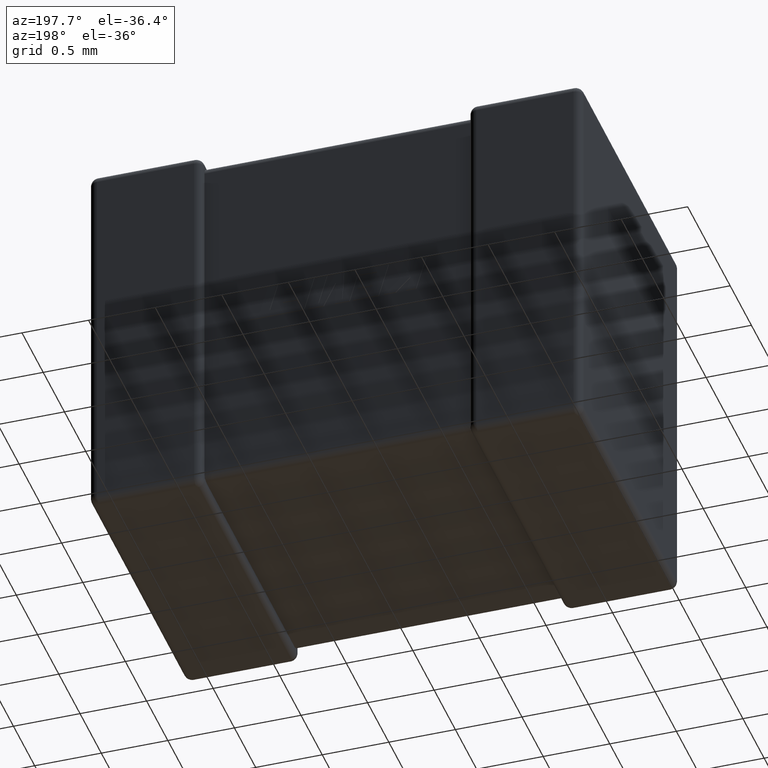
[diagram: clean part render]
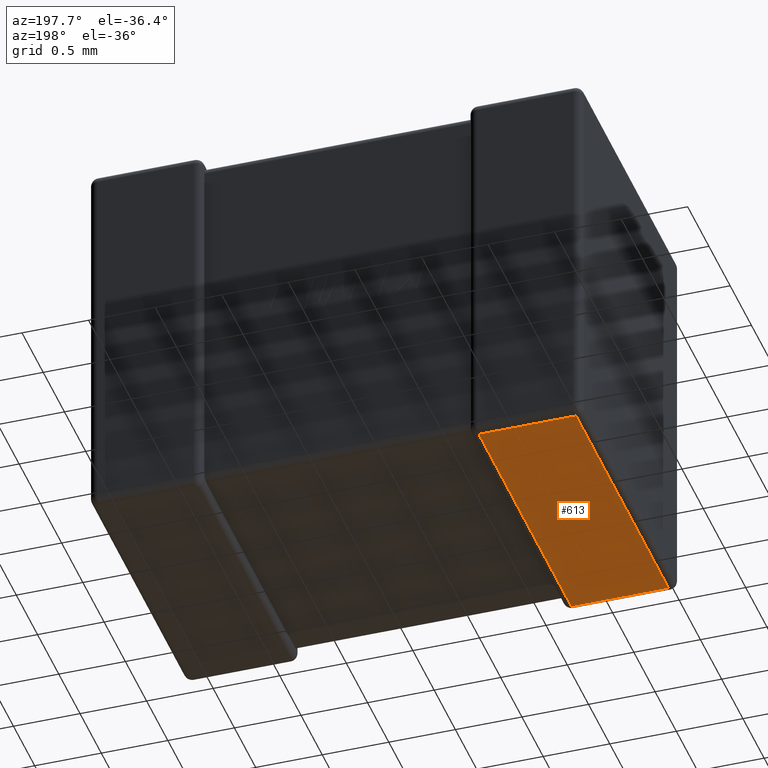
[diagram: same view with one face highlighted and labeled with its STEP entity id]
A machine part, auxiliary view. The second image highlights one B-rep face of the part: STEP entity #613.
In plain terms, the highlighted planar face has unit normal (0, 0, 1).
Its self-contained STEP definition (entity closure, byte-faithful):
#289 = VERTEX_POINT ( 'NONE', #866 ) ;
#449 = CARTESIAN_POINT ( 'NONE',  ( 0.06031999999999999200, 2.239680000000000300, -2.899999999999999900 ) ) ;
#472 = LINE ( 'NONE', #1703, #2078 ) ;
#473 = CARTESIAN_POINT ( 'NONE',  ( 3.699999999999999700, 0.0000000000000000000, -2.899999999999999900 ) ) ;
#536 = VECTOR ( 'NONE', #3291, 1000.000000000000000 ) ;
#613 = ADVANCED_FACE ( 'NONE', ( #3045 ), #1099, .F. ) ;
#616 = ORIENTED_EDGE ( 'NONE', *, *, #3330, .T. ) ;
#619 = VECTOR ( 'NONE', #3584, 1000.000000000000000 ) ;
#648 = VECTOR ( 'NONE', #1552, 1000.000000000000000 ) ;
#807 = CARTESIAN_POINT ( 'NONE',  ( 0.7896799999999920500, 0.06031999999999999900, -2.899999999999999900 ) ) ;
#844 = ORIENTED_EDGE ( 'NONE', *, *, #3172, .T. ) ;
#866 = CARTESIAN_POINT ( 'NONE',  ( 0.06031999999999999200, 0.06031999999999999900, -2.899999999999999900 ) ) ;
#1099 = PLANE ( 'NONE',  #4568 ) ;
#1406 = LINE ( 'NONE', #2511, #619 ) ;
#1431 = EDGE_CURVE ( 'NONE', #289, #3336, #1406, .T. ) ;
#1479 = CARTESIAN_POINT ( 'NONE',  ( 0.7896799999999918300, 1.046211958431041900E-014, -2.899999999999999900 ) ) ;
#1494 = LINE ( 'NONE', #1479, #536 ) ;
#1552 = DIRECTION ( 'NONE',  ( 1.000000000000000000, -0.0000000000000000000, -0.0000000000000000000 ) ) ;
#1703 = CARTESIAN_POINT ( 'NONE',  ( 3.699999999999999700, 0.06031999999999999900, -2.899999999999999900 ) ) ;
#1944 = DIRECTION ( 'NONE',  ( 1.000000000000000000, 0.0000000000000000000, -0.0000000000000000000 ) ) ;
#2078 = VECTOR ( 'NONE', #4560, 1000.000000000000000 ) ;
#2511 = CARTESIAN_POINT ( 'NONE',  ( 0.06031999999999999200, 2.300000000000000300, -2.899999999999999900 ) ) ;
#3045 = FACE_OUTER_BOUND ( 'NONE', #3687, .T. ) ;
#3056 = ORIENTED_EDGE ( 'NONE', *, *, #1431, .T. ) ;
#3124 = VERTEX_POINT ( 'NONE', #3128 ) ;
#3128 = CARTESIAN_POINT ( 'NONE',  ( 0.7896799999999998300, 2.239680000000000300, -2.899999999999999900 ) ) ;
#3172 = EDGE_CURVE ( 'NONE', #3336, #3124, #4503, .T. ) ;
#3291 = DIRECTION ( 'NONE',  ( -3.594834789408171300E-015, -1.000000000000000000, 0.0000000000000000000 ) ) ;
#3330 = EDGE_CURVE ( 'NONE', #3124, #3878, #1494, .T. ) ;
#3336 = VERTEX_POINT ( 'NONE', #449 ) ;
#3403 = DIRECTION ( 'NONE',  ( 0.0000000000000000000, 0.0000000000000000000, 1.000000000000000000 ) ) ;
#3454 = ORIENTED_EDGE ( 'NONE', *, *, #3649, .T. ) ;
#3584 = DIRECTION ( 'NONE',  ( 0.0000000000000000000, 1.000000000000000000, -0.0000000000000000000 ) ) ;
#3649 = EDGE_CURVE ( 'NONE', #3878, #289, #472, .T. ) ;
#3687 = EDGE_LOOP ( 'NONE', ( #844, #616, #3454, #3056 ) ) ;
#3878 = VERTEX_POINT ( 'NONE', #807 ) ;
#4143 = CARTESIAN_POINT ( 'NONE',  ( 3.699999999999999700, 2.239680000000000300, -2.899999999999999900 ) ) ;
#4503 = LINE ( 'NONE', #4143, #648 ) ;
#4560 = DIRECTION ( 'NONE',  ( -1.000000000000000000, -0.0000000000000000000, 0.0000000000000000000 ) ) ;
#4568 = AXIS2_PLACEMENT_3D ( 'NONE', #473, #3403, #1944 ) ;